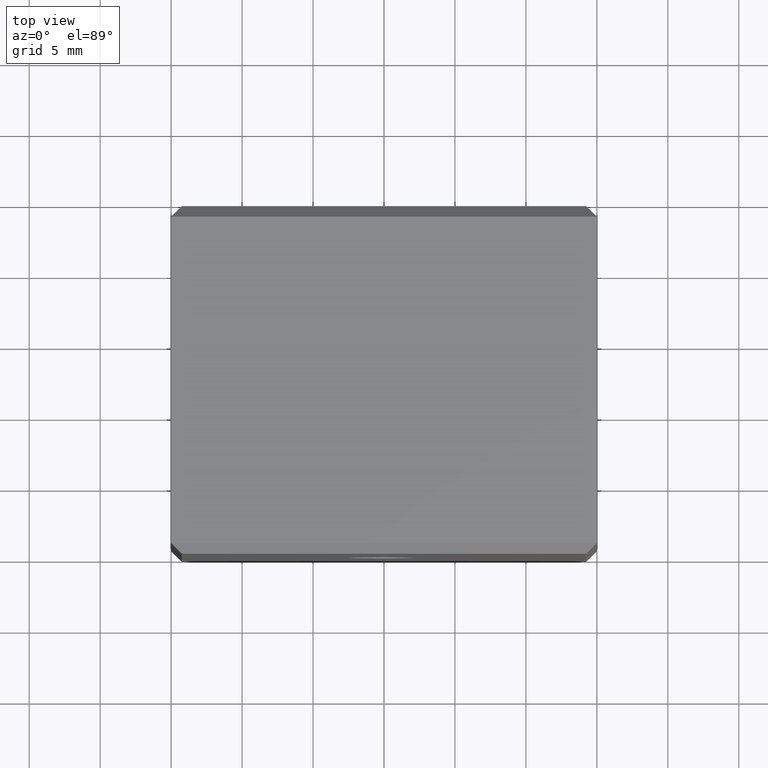
[diagram: clean part render]
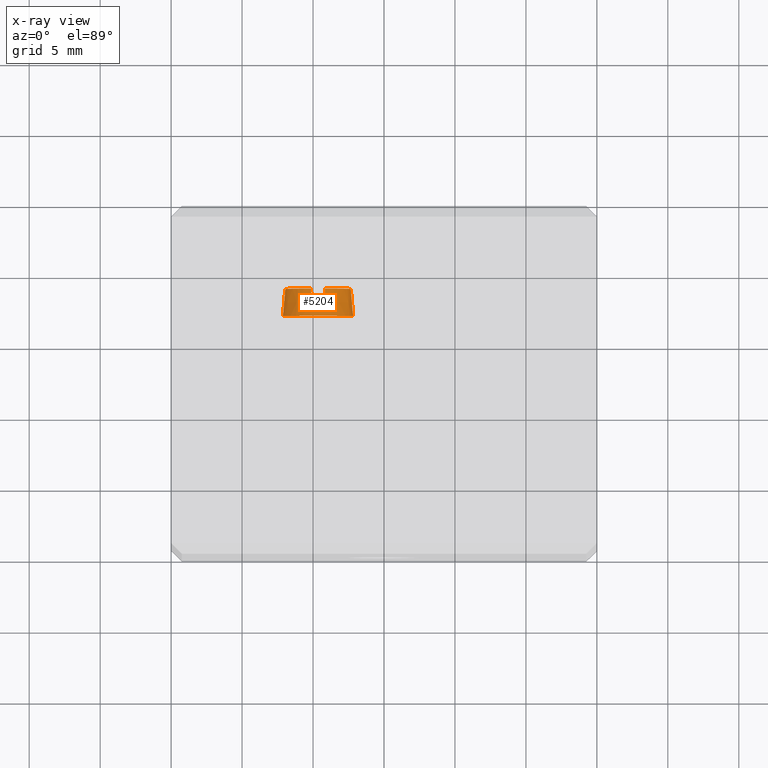
[diagram: x-ray — body ghosted, one internal face saturated and labeled with its STEP entity id]
A machine part, top view, then the same camera in x-ray: the body is ghosted and one INTERNAL B-rep face — a face not visible from any outside direction — is saturated and labeled: STEP entity #5204.
In plain terms, the highlighted conical surface has half-angle 5 deg.
Its self-contained STEP definition (entity closure, byte-faithful):
#225 = CARTESIAN_POINT ( 'NONE',  ( 10.81724900362606700, 18.41891520353921400, -23.18115818621452500 ) ) ;
#233 = CARTESIAN_POINT ( 'NONE',  ( 12.82569847697909400, 17.15875795676071600, -25.50000000000000400 ) ) ;
#240 = CARTESIAN_POINT ( 'NONE',  ( 9.882750996373861300, 18.41891520353427900, -23.18115818621645400 ) ) ;
#243 = CARTESIAN_POINT ( 'NONE',  ( 9.859565120763649700, 19.08287181009450600, -23.24536359692665100 ) ) ;
#249 = CARTESIAN_POINT ( 'NONE',  ( 10.34999999999999100, 17.15875795676071600, -23.02430152302124700 ) ) ;
#250 = CARTESIAN_POINT ( 'NONE',  ( 8.042639672518600200, 19.08287181009881600, -25.50000000000000400 ) ) ;
#254 = CARTESIAN_POINT ( 'NONE',  ( 7.874301523020881700, 17.15875795676071600, -25.50000000000000400 ) ) ;
#261 = CARTESIAN_POINT ( 'NONE',  ( 12.65736032747958400, 19.08287181009882300, -25.50000000000000400 ) ) ;
#264 = CARTESIAN_POINT ( 'NONE',  ( 10.84043487923610300, 19.08287181009436800, -23.24536359692806500 ) ) ;
#1189 = B_SPLINE_CURVE_WITH_KNOTS ( 'NONE', 3,
 ( #3202, #3208, #3199, #3209 ),
 .UNSPECIFIED., .F., .F.,
 ( 4, 4 ),
 ( 6.138354991190051800E-015, 0.0006674565865997910700 ),
 .UNSPECIFIED. ) ;
#1209 = B_SPLINE_CURVE_WITH_KNOTS ( 'NONE', 3,
 ( #3298, #3312, #3327, #3322 ),
 .UNSPECIFIED., .F., .F.,
 ( 4, 4 ),
 ( 4.373558186074115700E-015, 0.0006674565865845500000 ),
 .UNSPECIFIED. ) ;
#2000 = ORIENTED_EDGE ( 'NONE', *, *, #4652, .T. ) ;
#2001 = ORIENTED_EDGE ( 'NONE', *, *, #4625, .T. ) ;
#2003 = ORIENTED_EDGE ( 'NONE', *, *, #4662, .T. ) ;
#2010 = ORIENTED_EDGE ( 'NONE', *, *, #4670, .T. ) ;
#2019 = ORIENTED_EDGE ( 'NONE', *, *, #4582, .T. ) ;
#2063 = ORIENTED_EDGE ( 'NONE', *, *, #4618, .F. ) ;
#2072 = ORIENTED_EDGE ( 'NONE', *, *, #4626, .F. ) ;
#2089 = ORIENTED_EDGE ( 'NONE', *, *, #4650, .T. ) ;
#2099 = ORIENTED_EDGE ( 'NONE', *, *, #4581, .F. ) ;
#2913 = CARTESIAN_POINT ( 'NONE',  ( 10.34999999999998500, 18.41891520354010600, -25.50000000000000400 ) ) ;
#2915 = CARTESIAN_POINT ( 'NONE',  ( 12.82569847696635200, 17.15875795690635600, -25.50000000000000400 ) ) ;
#2920 = DIRECTION ( 'NONE',  ( 1.401401254721876100E-015, -1.000000000000000000, 0.0000000000000000000 ) ) ;
#2931 = DIRECTION ( 'NONE',  ( 0.08715574274635182200, -0.9961946980918597900, 0.0000000000000000000 ) ) ;
#2938 = LINE ( 'NONE', #2915, #8218 ) ;
#2944 = DIRECTION ( 'NONE',  ( 1.000000000000000000, 1.466718135390503300E-015, 0.0000000000000000000 ) ) ;
#2995 = DIRECTION ( 'NONE',  ( 1.000000000000000000, 1.401401254722904700E-015, 0.0000000000000000000 ) ) ;
#3011 = CARTESIAN_POINT ( 'NONE',  ( 10.34999999999999300, 17.15875795676071600, -25.50000000000000400 ) ) ;
#3014 = DIRECTION ( 'NONE',  ( 7.007006273614528600E-016, -1.000000000000000000, 0.0000000000000000000 ) ) ;
#3041 = DIRECTION ( 'NONE',  ( 1.000000000000000000, 1.503643323772398800E-015, 0.0000000000000000000 ) ) ;
#3047 = CARTESIAN_POINT ( 'NONE',  ( 10.34999999999998400, 19.08287181009881900, -25.50000000000000400 ) ) ;
#3051 = CARTESIAN_POINT ( 'NONE',  ( 10.34999999999999300, 17.15875795676071600, -25.50000000000000400 ) ) ;
#3056 = DIRECTION ( 'NONE',  ( 1.000000000000000000, 1.401401254722904700E-015, 0.0000000000000000000 ) ) ;
#3062 = DIRECTION ( 'NONE',  ( 7.007006273614528600E-016, -1.000000000000000000, 0.0000000000000000000 ) ) ;
#3065 = DIRECTION ( 'NONE',  ( 1.401401254721876100E-015, -1.000000000000000000, 0.0000000000000000000 ) ) ;
#3175 = LINE ( 'NONE', #3191, #8325 ) ;
#3191 = CARTESIAN_POINT ( 'NONE',  ( 7.874301523033623500, 17.15875795690634900, -25.50000000000000400 ) ) ;
#3199 = CARTESIAN_POINT ( 'NONE',  ( 9.867293427714527000, 18.86156205480103400, -23.22386764288964000 ) ) ;
#3202 = CARTESIAN_POINT ( 'NONE',  ( 9.882750996373861300, 18.41891520353427900, -23.18115818621645400 ) ) ;
#3207 = DIRECTION ( 'NONE',  ( -0.08715574274634903300, -0.9961946980918600100, 1.067350013816282300E-017 ) ) ;
#3208 = CARTESIAN_POINT ( 'NONE',  ( 9.875022063044511400, 18.64024289596030600, -23.20246843508010300 ) ) ;
#3209 = CARTESIAN_POINT ( 'NONE',  ( 9.859565120763649700, 19.08287181009450600, -23.24536359692665100 ) ) ;
#3245 = DIRECTION ( 'NONE',  ( 1.401401254721876100E-015, -1.000000000000000000, 0.0000000000000000000 ) ) ;
#3277 = CARTESIAN_POINT ( 'NONE',  ( 10.34999999999998400, 19.08287181009881900, -25.50000000000000400 ) ) ;
#3298 = CARTESIAN_POINT ( 'NONE',  ( 10.84043487923610300, 19.08287181009436800, -23.24536359692806500 ) ) ;
#3312 = CARTESIAN_POINT ( 'NONE',  ( 10.83270657228534100, 18.86156205480424900, -23.22386764288990300 ) ) ;
#3320 = DIRECTION ( 'NONE',  ( 1.000000000000000000, 1.503643323772398800E-015, 0.0000000000000000000 ) ) ;
#3322 = CARTESIAN_POINT ( 'NONE',  ( 10.81724900362606700, 18.41891520353921400, -23.18115818621452500 ) ) ;
#3327 = CARTESIAN_POINT ( 'NONE',  ( 10.82497793695547000, 18.64024289596674300, -23.20246843508067900 ) ) ;
#3703 = VERTEX_POINT ( 'NONE', #254 ) ;
#3705 = VERTEX_POINT ( 'NONE', #261 ) ;
#3711 = VERTEX_POINT ( 'NONE', #233 ) ;
#3715 = VERTEX_POINT ( 'NONE', #249 ) ;
#3726 = VERTEX_POINT ( 'NONE', #250 ) ;
#3730 = VERTEX_POINT ( 'NONE', #240 ) ;
#3731 = VERTEX_POINT ( 'NONE', #225 ) ;
#3735 = VERTEX_POINT ( 'NONE', #264 ) ;
#3736 = VERTEX_POINT ( 'NONE', #243 ) ;
#3880 = EDGE_LOOP ( 'NONE', ( #2003, #2089, #2063, #2072, #2099, #2001, #2010, #2019, #2000 ) ) ;
#4581 = EDGE_CURVE ( 'NONE', #3705, #3711, #2938, .T. ) ;
#4582 = EDGE_CURVE ( 'NONE', #3731, #3730, #8194, .T. ) ;
#4618 = EDGE_CURVE ( 'NONE', #3715, #3703, #8277, .T. ) ;
#4625 = EDGE_CURVE ( 'NONE', #3705, #3735, #8247, .T. ) ;
#4626 = EDGE_CURVE ( 'NONE', #3711, #3715, #8264, .T. ) ;
#4650 = EDGE_CURVE ( 'NONE', #3726, #3703, #3175, .T. ) ;
#4652 = EDGE_CURVE ( 'NONE', #3730, #3736, #1189, .T. ) ;
#4662 = EDGE_CURVE ( 'NONE', #3736, #3726, #8376, .T. ) ;
#4670 = EDGE_CURVE ( 'NONE', #3735, #3731, #1209, .T. ) ;
#5204 = ADVANCED_FACE ( 'NONE', ( #6902 ), #9221, .T. ) ;
#6894 = CARTESIAN_POINT ( 'NONE',  ( 10.34999999999998700, 17.15875795690635300, -25.50000000000000400 ) ) ;
#6902 = FACE_OUTER_BOUND ( 'NONE', #3880, .T. ) ;
#6906 = DIRECTION ( 'NONE',  ( 1.401401254729920300E-015, -1.000000000000000000, 0.0000000000000000000 ) ) ;
#6907 = DIRECTION ( 'NONE',  ( 1.000000000000000000, 1.401401254729919900E-015, 0.0000000000000000000 ) ) ;
#8194 = CIRCLE ( 'NONE', #8206, 2.365449003621884500 ) ;
#8206 = AXIS2_PLACEMENT_3D ( 'NONE', #2913, #2920, #2944 ) ;
#8218 = VECTOR ( 'NONE', #2931, 1000.000000000000200 ) ;
#8247 = CIRCLE ( 'NONE', #8256, 2.307360327480676000 ) ;
#8248 = AXIS2_PLACEMENT_3D ( 'NONE', #3051, #3062, #3056 ) ;
#8256 = AXIS2_PLACEMENT_3D ( 'NONE', #3047, #3065, #3041 ) ;
#8257 = AXIS2_PLACEMENT_3D ( 'NONE', #3011, #3014, #2995 ) ;
#8264 = CIRCLE ( 'NONE', #8248, 2.475698476978756900 ) ;
#8277 = CIRCLE ( 'NONE', #8257, 2.475698476978756900 ) ;
#8299 = AXIS2_PLACEMENT_3D ( 'NONE', #3277, #3245, #3320 ) ;
#8325 = VECTOR ( 'NONE', #3207, 1000.000000000000200 ) ;
#8376 = CIRCLE ( 'NONE', #8299, 2.307360327480676000 ) ;
#9221 = CONICAL_SURFACE ( 'NONE', #9286, 2.475698476966364100, 0.08726646259840374600 ) ;
#9286 = AXIS2_PLACEMENT_3D ( 'NONE', #6894, #6906, #6907 ) ;